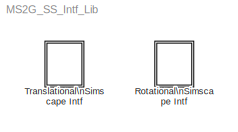
MODEL MS2G_SS_Intf_Lib
KIND library
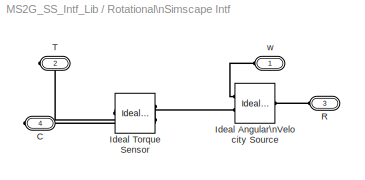
BLOCK [SubSystem] Rotational\nSimscape Intf
  FunctionWithSeparateData = off
  MaskHideContents = off
  MinAlgLoopOccurrences = off
  Opaque = off
  Ports = [0, 0, 0, 0, 0, 2, 2]
  PropExecContextOutsideSubsystem = off
  RTWSystemCode = Auto
  RequestExecContextInheritance = off
  SID = 8
BLOCK [PMIOPort] Rotational\nSimscape Intf/C
  Port = 4
  SID = 14
  Side = Right
BLOCK [Reference] Rotational\nSimscape Intf/Ideal Angular\nVelocity Source  REF=fl_lib/Mechanical/Mechanical Sources/Ideal Angular\nVelocity Source
  ClassName = angular_velocity
  ComponentPath = foundation.mechanical.sources.angular_velocity
  ComponentVariantNames = angular_velocity
  ComponentVariants = foundation.mechanical.sources.angular_velocity
  LocalVarDescs = |w|t
  LocalVarLogging = [0 0]
  LocalVarNames = |w|t
  Ports = [0, 0, 0, 0, 0, 1, 2]
  SID = 24
  SchemaVersion = 1
  SourceBlock = fl_lib/Mechanical/Mechanical Sources/Ideal Angular\nVelocity Source
  SourceFile = foundation.mechanical.sources.angular_velocity
  SourceType = Ideal Angular\nVelocity Source
  t_Log = off
  w_Log = off
BLOCK [Reference] Rotational\nSimscape Intf/Ideal Torque Sensor  REF=fl_lib/Mechanical/Mechanical Sensors/Ideal Torque Sensor
  ClassName = torque
  ComponentPath = foundation.mechanical.sensors.torque
  ComponentVariantNames = torque
  ComponentVariants = foundation.mechanical.sensors.torque
  LocalVarDescs = |w|t
  LocalVarLogging = [0 0]
  LocalVarNames = |w|t
  Ports = [0, 0, 0, 0, 0, 1, 2]
  SID = 17
  SchemaVersion = 1
  SourceBlock = fl_lib/Mechanical/Mechanical Sensors/Ideal Torque Sensor
  SourceFile = foundation.mechanical.sensors.torque
  SourceType = Ideal Torque Sensor
  t_Log = off
  w_Log = off
BLOCK [PMIOPort] Rotational\nSimscape Intf/R
  Port = 3
  SID = 13
  Side = Left
BLOCK [PMIOPort] Rotational\nSimscape Intf/T
  Port = 2
  SID = 12
  Side = Right
BLOCK [PMIOPort] Rotational\nSimscape Intf/w
  Port = 1
  SID = 11
  Side = Left
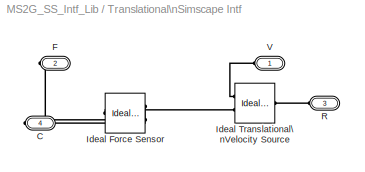
BLOCK [SubSystem] Translational\nSimscape Intf
  FunctionWithSeparateData = off
  MaskHideContents = off
  MinAlgLoopOccurrences = off
  Opaque = off
  Ports = [0, 0, 0, 0, 0, 2, 2]
  PropExecContextOutsideSubsystem = off
  RTWSystemCode = Auto
  RequestExecContextInheritance = off
  SID = 1
BLOCK [PMIOPort] Translational\nSimscape Intf/C
  Port = 4
  SID = 7
  Side = Right
BLOCK [PMIOPort] Translational\nSimscape Intf/F
  Port = 2
  SID = 5
  Side = Right
BLOCK [Reference] Translational\nSimscape Intf/Ideal Force Sensor  REF=fl_lib/Mechanical/Mechanical Sensors/Ideal Force Sensor
  ClassName = force
  ComponentPath = foundation.mechanical.sensors.force
  ComponentVariantNames = force
  ComponentVariants = foundation.mechanical.sensors.force
  LocalVarDescs = |v|f
  LocalVarLogging = [0 0]
  LocalVarNames = |v|f
  Ports = [0, 0, 0, 0, 0, 1, 2]
  SID = 2
  SchemaVersion = 1
  SourceBlock = fl_lib/Mechanical/Mechanical Sensors/Ideal Force Sensor
  SourceFile = foundation.mechanical.sensors.force
  SourceType = Ideal Force Sensor
  f_Log = off
  v_Log = off
BLOCK [Reference] Translational\nSimscape Intf/Ideal Translational\nVelocity Source  REF=fl_lib/Mechanical/Mechanical Sources/Ideal Translational\nVelocity Source
  ClassName = velocity
  ComponentPath = foundation.mechanical.sources.velocity
  ComponentVariantNames = velocity
  ComponentVariants = foundation.mechanical.sources.velocity
  LocalVarDescs = |v|f
  LocalVarLogging = [0 0]
  LocalVarNames = |v|f
  Ports = [0, 0, 0, 0, 0, 1, 2]
  SID = 3
  SchemaVersion = 1
  SourceBlock = fl_lib/Mechanical/Mechanical Sources/Ideal Translational\nVelocity Source
  SourceFile = foundation.mechanical.sources.velocity
  SourceType = Ideal Translational\nVelocity Source
  f_Log = off
  v_Log = off
BLOCK [PMIOPort] Translational\nSimscape Intf/R
  Port = 3
  SID = 6
  Side = Left
BLOCK [PMIOPort] Translational\nSimscape Intf/V
  Port = 1
  SID = 4
  Side = Left
PLINE Rotational\nSimscape Intf/C:RConn1 -- Rotational\nSimscape Intf/Ideal Torque Sensor:RConn1
PLINE Rotational\nSimscape Intf/Ideal Angular\nVelocity Source:LConn1 -- Rotational\nSimscape Intf/R:RConn1
PLINE Rotational\nSimscape Intf/Ideal Angular\nVelocity Source:RConn1 -- Rotational\nSimscape Intf/w:RConn1
PLINE Rotational\nSimscape Intf/Ideal Angular\nVelocity Source:RConn2 -- Rotational\nSimscape Intf/Ideal Torque Sensor:LConn1
PLINE Rotational\nSimscape Intf/Ideal Torque Sensor:RConn2 -- Rotational\nSimscape Intf/T:RConn1
PLINE Translational\nSimscape Intf/C:RConn1 -- Translational\nSimscape Intf/Ideal Force Sensor:RConn1
PLINE Translational\nSimscape Intf/F:RConn1 -- Translational\nSimscape Intf/Ideal Force Sensor:RConn2
PLINE Translational\nSimscape Intf/Ideal Force Sensor:LConn1 -- Translational\nSimscape Intf/Ideal Translational\nVelocity Source:RConn2
PLINE Translational\nSimscape Intf/Ideal Translational\nVelocity Source:LConn1 -- Translational\nSimscape Intf/R:RConn1
PLINE Translational\nSimscape Intf/Ideal Translational\nVelocity Source:RConn1 -- Translational\nSimscape Intf/V:RConn1
